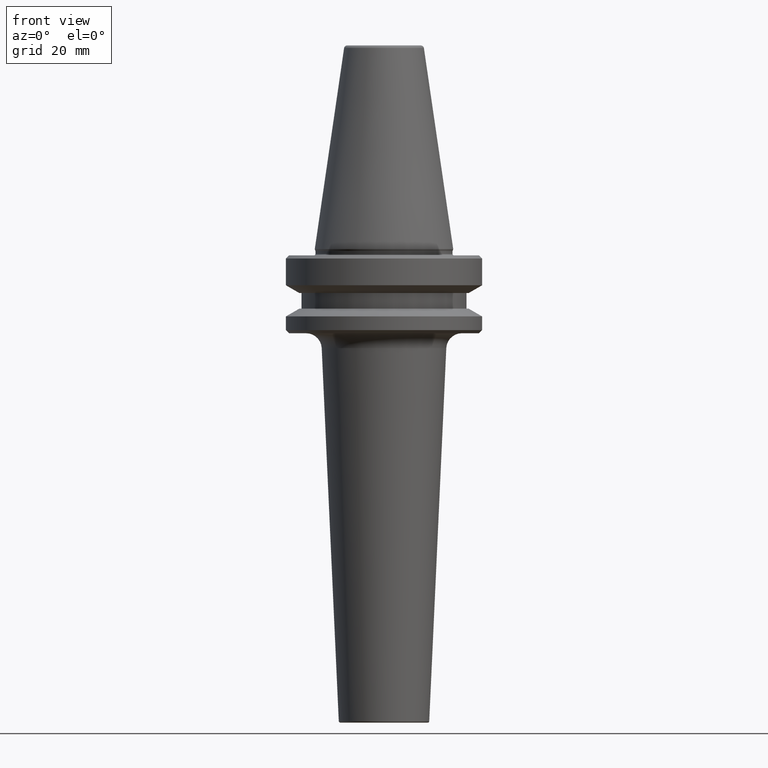
[diagram: clean part render]
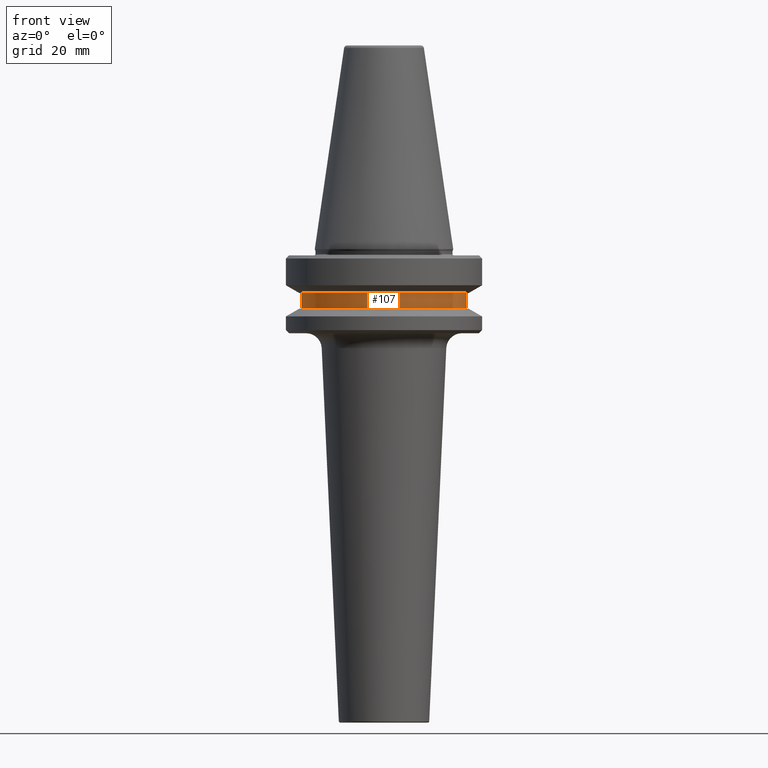
[diagram: same view with one face highlighted and labeled with its STEP entity id]
A machine part, front view. The second image highlights one B-rep face of the part: STEP entity #107.
In plain terms, the highlighted cylindrical surface (partial cylindrical patch) has radius 26.5 mm, axis along (-0, -0, 1).
Its self-contained STEP definition (entity closure, byte-faithful):
#11 = AXIS2_PLACEMENT_3D ( 'NONE', #25, #518, #603 ) ;
#25 = CARTESIAN_POINT ( 'NONE',  ( 0.0000000000000000000, 0.0000000000000000000, 6.357346922996331500 ) ) ;
#84 = VECTOR ( 'NONE', #225, 1000.000000000000000 ) ;
#107 = ADVANCED_FACE ( 'NONE', ( #774 ), #552, .T. ) ;
#109 = ORIENTED_EDGE ( 'NONE', *, *, #278, .T. ) ;
#120 = AXIS2_PLACEMENT_3D ( 'NONE', #301, #863, #384 ) ;
#145 = CARTESIAN_POINT ( 'NONE',  ( -26.50000000000019200, 3.245314017740509400E-015, -79.50000000000012800 ) ) ;
#179 = CARTESIAN_POINT ( 'NONE',  ( 26.50000000000019200, 0.0000000000000000000, -84.50000000000068200 ) ) ;
#225 = DIRECTION ( 'NONE',  ( -0.0000000000000000000, -0.0000000000000000000, 1.000000000000000000 ) ) ;
#273 = VECTOR ( 'NONE', #562, 1000.000000000000000 ) ;
#278 = EDGE_CURVE ( 'NONE', #973, #1030, #748, .T. ) ;
#301 = CARTESIAN_POINT ( 'NONE',  ( 0.0000000000000000000, 0.0000000000000000000, -79.50000000000012800 ) ) ;
#311 = ORIENTED_EDGE ( 'NONE', *, *, #613, .F. ) ;
#340 = VERTEX_POINT ( 'NONE', #615 ) ;
#384 = DIRECTION ( 'NONE',  ( 1.000000000000000000, 0.0000000000000000000, 0.0000000000000000000 ) ) ;
#401 = EDGE_CURVE ( 'NONE', #340, #973, #858, .T. ) ;
#433 = ORIENTED_EDGE ( 'NONE', *, *, #401, .T. ) ;
#490 = LINE ( 'NONE', #880, #273 ) ;
#496 = AXIS2_PLACEMENT_3D ( 'NONE', #976, #498, #1054 ) ;
#498 = DIRECTION ( 'NONE',  ( -0.0000000000000000000, -0.0000000000000000000, 1.000000000000000000 ) ) ;
#518 = DIRECTION ( 'NONE',  ( -0.0000000000000000000, -0.0000000000000000000, 1.000000000000000000 ) ) ;
#552 = CYLINDRICAL_SURFACE ( 'NONE', #11, 26.50000000000019200 ) ;
#562 = DIRECTION ( 'NONE',  ( -0.0000000000000000000, -0.0000000000000000000, 1.000000000000000000 ) ) ;
#570 = CIRCLE ( 'NONE', #120, 26.50000000000019200 ) ;
#603 = DIRECTION ( 'NONE',  ( 1.000000000000000000, 0.0000000000000000000, 0.0000000000000000000 ) ) ;
#613 = EDGE_CURVE ( 'NONE', #1034, #1030, #570, .T. ) ;
#615 = CARTESIAN_POINT ( 'NONE',  ( -26.50000000000019200, 3.245314017740509400E-015, -84.50000000000068200 ) ) ;
#634 = ORIENTED_EDGE ( 'NONE', *, *, #1053, .F. ) ;
#711 = CARTESIAN_POINT ( 'NONE',  ( 26.50000000000019200, 0.0000000000000000000, 6.357346922996331500 ) ) ;
#722 = CARTESIAN_POINT ( 'NONE',  ( 26.50000000000019200, 0.0000000000000000000, -79.50000000000012800 ) ) ;
#748 = LINE ( 'NONE', #711, #84 ) ;
#774 = FACE_OUTER_BOUND ( 'NONE', #780, .T. ) ;
#780 = EDGE_LOOP ( 'NONE', ( #634, #433, #109, #311 ) ) ;
#858 = CIRCLE ( 'NONE', #496, 26.50000000000019200 ) ;
#863 = DIRECTION ( 'NONE',  ( -0.0000000000000000000, -0.0000000000000000000, 1.000000000000000000 ) ) ;
#880 = CARTESIAN_POINT ( 'NONE',  ( -26.50000000000019200, 3.245314017740509400E-015, 6.357346922996331500 ) ) ;
#973 = VERTEX_POINT ( 'NONE', #179 ) ;
#976 = CARTESIAN_POINT ( 'NONE',  ( 0.0000000000000000000, 0.0000000000000000000, -84.50000000000068200 ) ) ;
#1030 = VERTEX_POINT ( 'NONE', #722 ) ;
#1034 = VERTEX_POINT ( 'NONE', #145 ) ;
#1053 = EDGE_CURVE ( 'NONE', #340, #1034, #490, .T. ) ;
#1054 = DIRECTION ( 'NONE',  ( 1.000000000000000000, 0.0000000000000000000, 0.0000000000000000000 ) ) ;